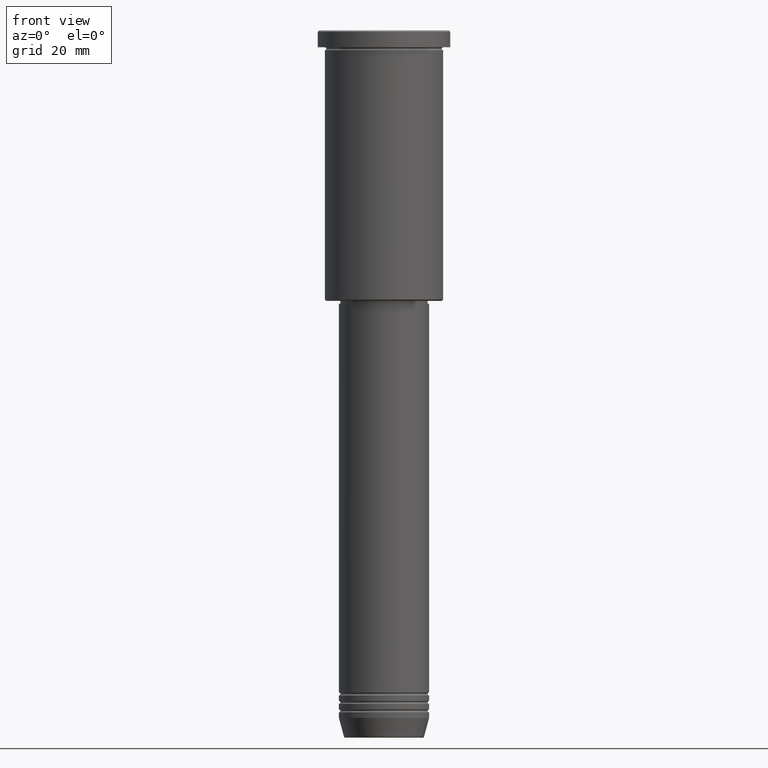
[diagram: clean part render]
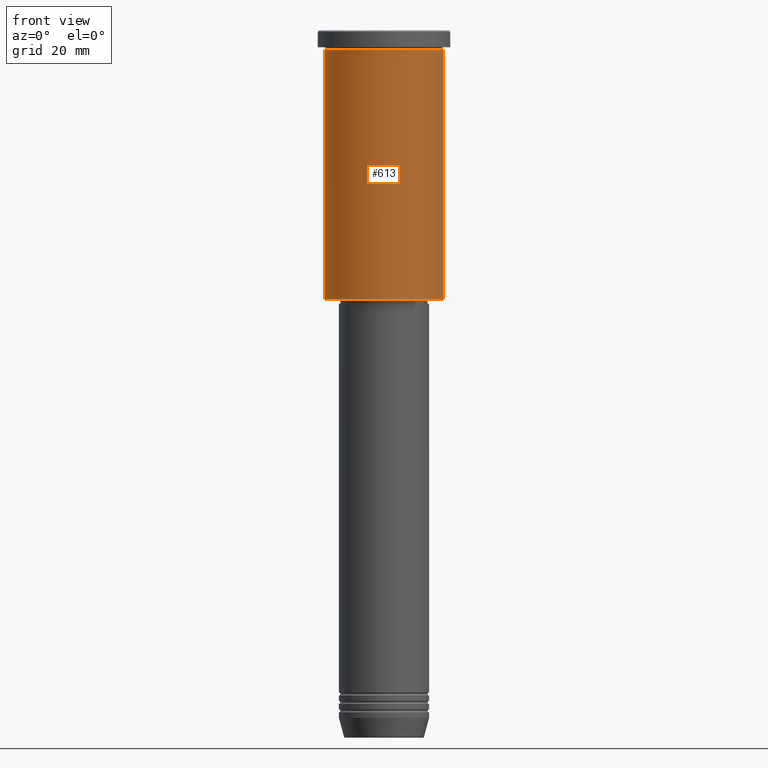
[diagram: same view with one face highlighted and labeled with its STEP entity id]
A machine part, front view. The second image highlights one B-rep face of the part: STEP entity #613.
In plain terms, the highlighted cylindrical surface (partial cylindrical patch) has radius 21 mm, axis along (-0, -0, 1).
Its self-contained STEP definition (entity closure, byte-faithful):
#4 = DIRECTION ( 'NONE',  ( -0.000000000000000000, -0.000000000000000000, 1.000000000000000000 ) ) ;
#44 = VERTEX_POINT ( 'NONE', #610 ) ;
#96 = LINE ( 'NONE', #822, #1122 ) ;
#106 = DIRECTION ( 'NONE',  ( -0.000000000000000000, -0.000000000000000000, 1.000000000000000000 ) ) ;
#119 = CARTESIAN_POINT ( 'NONE',  ( 0.000000000000000000, 0.000000000000000000, 0.000000000000000000 ) ) ;
#181 = CARTESIAN_POINT ( 'NONE',  ( -21.00000000000000000, 2.571758278209441661E-15, 0.000000000000000000 ) ) ;
#188 = AXIS2_PLACEMENT_3D ( 'NONE', #248, #426, #576 ) ;
#214 = CARTESIAN_POINT ( 'NONE',  ( 21.00000000000000000, 0.000000000000000000, -6.999999999999994671 ) ) ;
#215 = VERTEX_POINT ( 'NONE', #214 ) ;
#248 = CARTESIAN_POINT ( 'NONE',  ( 0.000000000000000000, 0.000000000000000000, -6.999999999999994671 ) ) ;
#262 = VECTOR ( 'NONE', #4, 1000.000000000000000 ) ;
#265 = LINE ( 'NONE', #181, #262 ) ;
#277 = CARTESIAN_POINT ( 'NONE',  ( -21.00000000000000000, 2.571758278209441661E-15, -95.49999999999997158 ) ) ;
#303 = FACE_OUTER_BOUND ( 'NONE', #374, .T. ) ;
#318 = AXIS2_PLACEMENT_3D ( 'NONE', #542, #358, #711 ) ;
#358 = DIRECTION ( 'NONE',  ( -0.000000000000000000, -0.000000000000000000, 1.000000000000000000 ) ) ;
#374 = EDGE_LOOP ( 'NONE', ( #1037, #1174, #501, #403 ) ) ;
#403 = ORIENTED_EDGE ( 'NONE', *, *, #691, .F. ) ;
#422 = DIRECTION ( 'NONE',  ( 1.000000000000000000, 0.000000000000000000, 0.000000000000000000 ) ) ;
#426 = DIRECTION ( 'NONE',  ( -0.000000000000000000, -0.000000000000000000, 1.000000000000000000 ) ) ;
#485 = EDGE_CURVE ( 'NONE', #1128, #215, #96, .T. ) ;
#501 = ORIENTED_EDGE ( 'NONE', *, *, #485, .T. ) ;
#504 = VERTEX_POINT ( 'NONE', #277 ) ;
#542 = CARTESIAN_POINT ( 'NONE',  ( 0.000000000000000000, 0.000000000000000000, -95.49999999999997158 ) ) ;
#576 = DIRECTION ( 'NONE',  ( 1.000000000000000000, 0.000000000000000000, 0.000000000000000000 ) ) ;
#585 = CIRCLE ( 'NONE', #188, 21.00000000000000000 ) ;
#610 = CARTESIAN_POINT ( 'NONE',  ( -21.00000000000000000, 2.571758278209441661E-15, -6.999999999999994671 ) ) ;
#613 = ADVANCED_FACE ( 'NONE', ( #303 ), #942, .T. ) ;
#691 = EDGE_CURVE ( 'NONE', #44, #215, #585, .T. ) ;
#711 = DIRECTION ( 'NONE',  ( -1.000000000000000000, 0.000000000000000000, 0.000000000000000000 ) ) ;
#822 = CARTESIAN_POINT ( 'NONE',  ( 21.00000000000000000, 0.000000000000000000, 0.000000000000000000 ) ) ;
#829 = CIRCLE ( 'NONE', #318, 21.00000000000000000 ) ;
#854 = EDGE_CURVE ( 'NONE', #504, #44, #265, .T. ) ;
#870 = EDGE_CURVE ( 'NONE', #504, #1128, #829, .T. ) ;
#942 = CYLINDRICAL_SURFACE ( 'NONE', #1061, 21.00000000000000000 ) ;
#1030 = DIRECTION ( 'NONE',  ( -0.000000000000000000, -0.000000000000000000, 1.000000000000000000 ) ) ;
#1037 = ORIENTED_EDGE ( 'NONE', *, *, #854, .F. ) ;
#1055 = CARTESIAN_POINT ( 'NONE',  ( 21.00000000000000000, 0.000000000000000000, -95.49999999999997158 ) ) ;
#1061 = AXIS2_PLACEMENT_3D ( 'NONE', #119, #1030, #422 ) ;
#1122 = VECTOR ( 'NONE', #106, 1000.000000000000000 ) ;
#1128 = VERTEX_POINT ( 'NONE', #1055 ) ;
#1174 = ORIENTED_EDGE ( 'NONE', *, *, #870, .T. ) ;